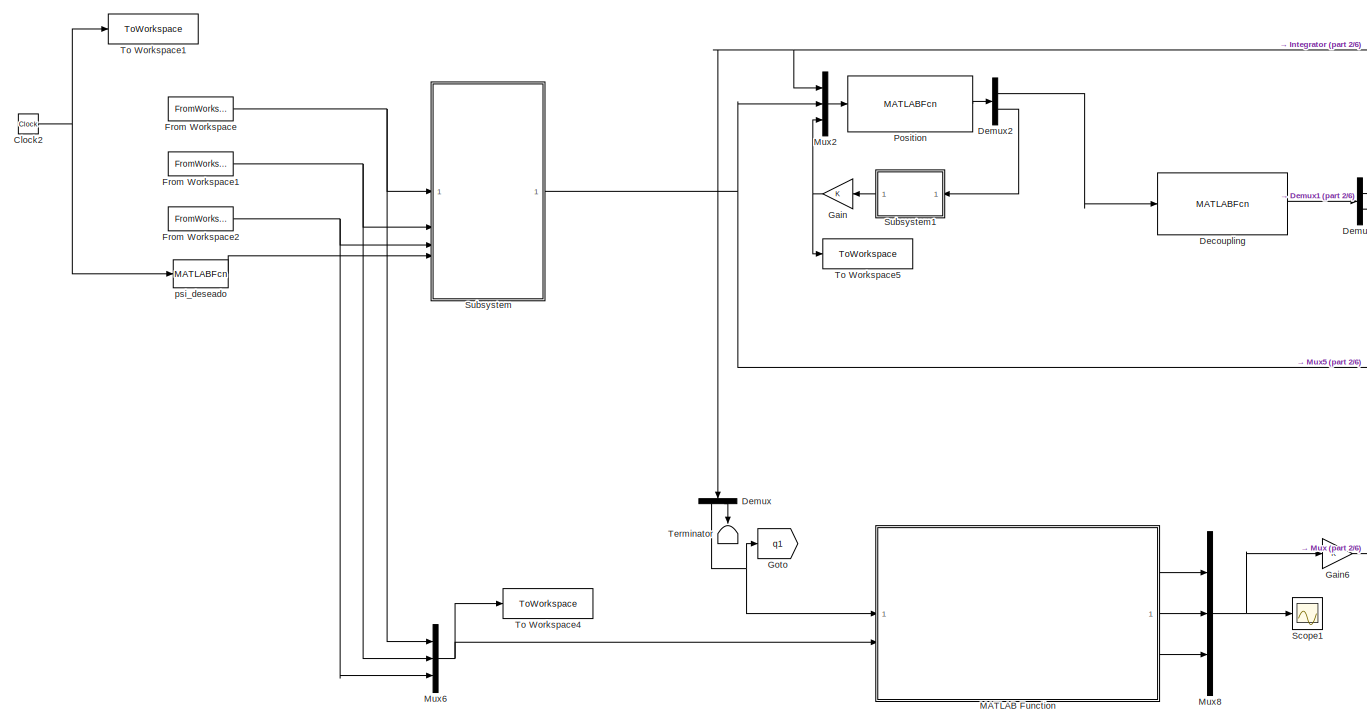
[diagram: root canvas - part 1/6, top left region]
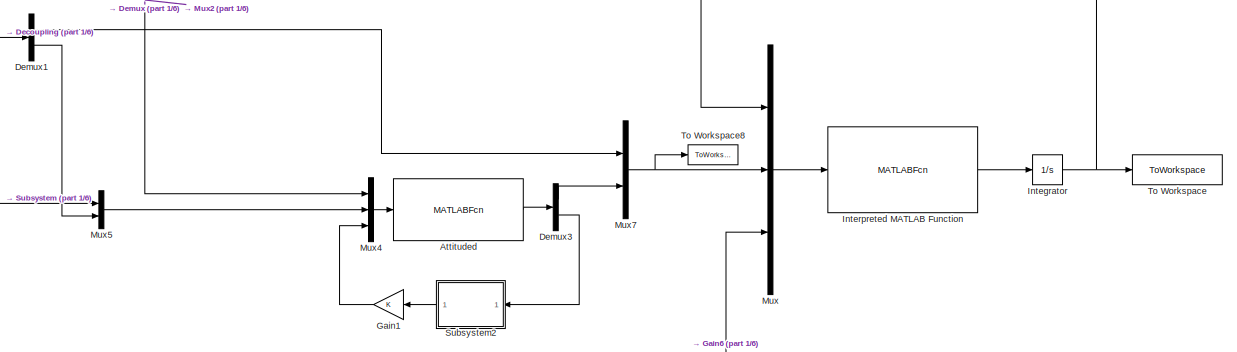
[diagram: root canvas - part 2/6, top right region]
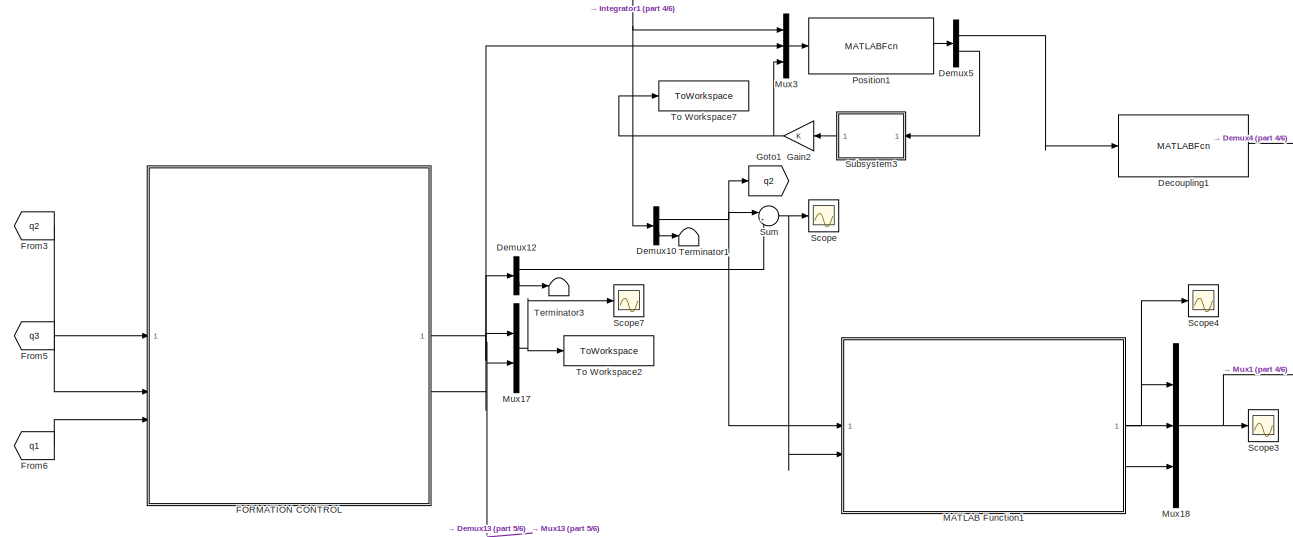
[diagram: root canvas - part 3/6, middle left region]
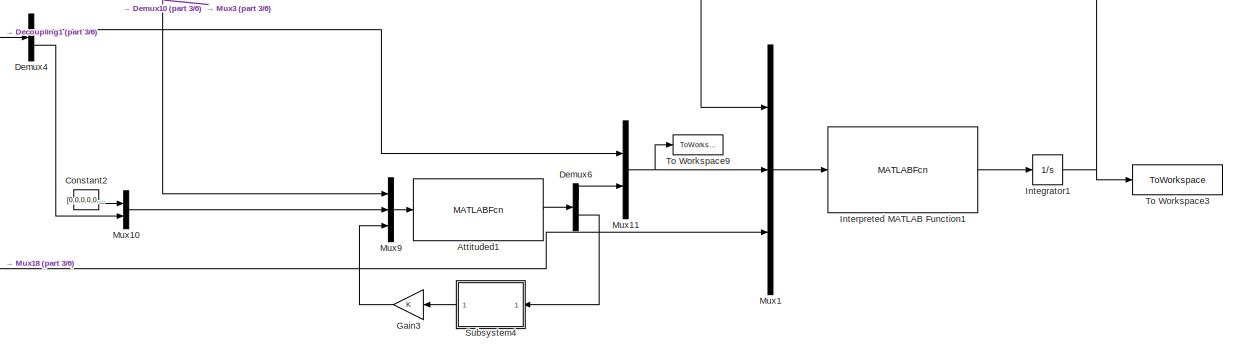
[diagram: root canvas - part 4/6, middle right region]
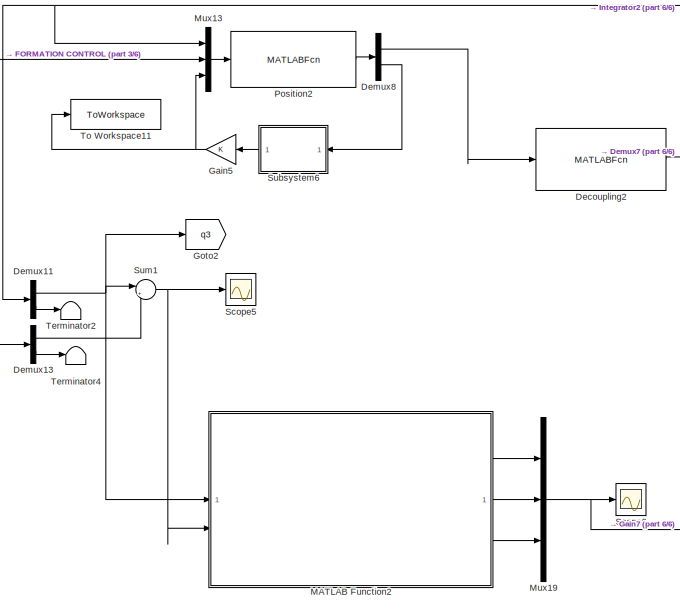
[diagram: root canvas - part 5/6, bottom center region]
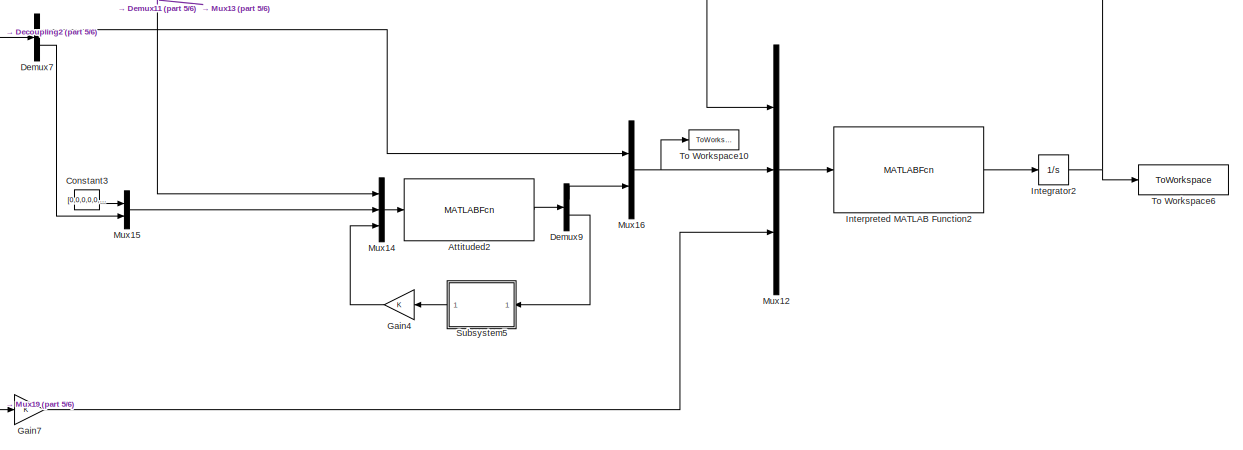
[diagram: root canvas - part 6/6, bottom right region]
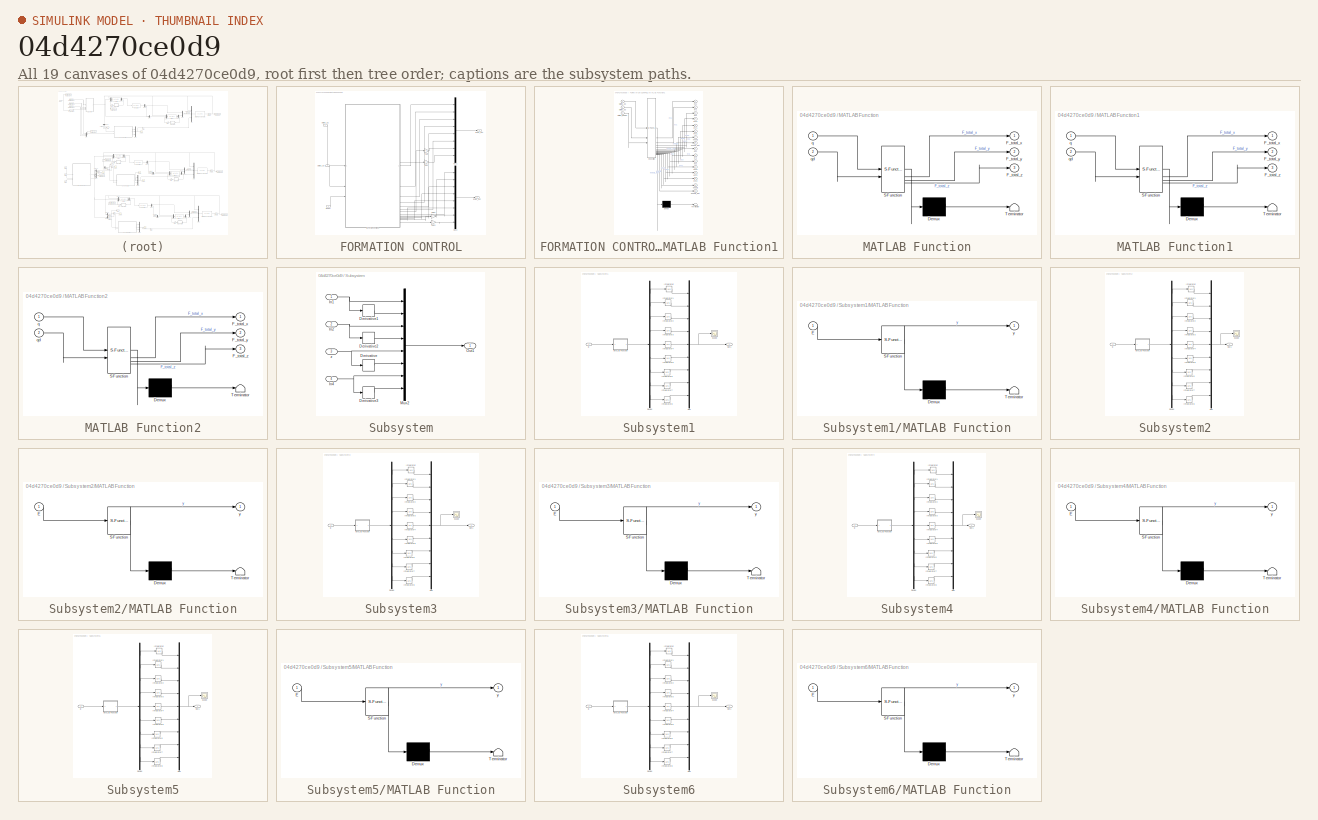
[diagram: thumbnail index - all 19 canvases of the model, root first then tree order]
MODEL slx_04d4270ce0d9
KIND model
CONFIG AbsTol = auto
CONFIG EnableMultiTasking = off
CONFIG FixedStep = auto
CONFIG MaxStep = auto
CONFIG MinStep = auto
CONFIG RelTol = 1e-3
CONFIG SampleTimeConstraint = Unconstrained
CONFIG SolverName = VariableStepAuto
CONFIG StartTime = 0.0
CONFIG StopTime = 100
BLOCK [MATLABFcn] Attituded
  MATLABFcn = control_attituded_FO(u(1),u(2),u(3),u(4),u(5),u(6),u(7),u(8),u(9),u(10),u(11),u(12),u(13),u(14),u(15),u(16),u(17),u(18),u(19),u(20),u(21),u(22),u(23),u(24),u(25),u(26),u(27),u(28),u(29),u(30),u(31))
  OutputDimensions = 9
BLOCK [MATLABFcn] Attituded1
  MATLABFcn = control_attituded_FO2(u(1),u(2),u(3),u(4),u(5),u(6),u(7),u(8),u(9),u(10),u(11),u(12),u(13),u(14),u(15),u(16),u(17),u(18),u(19),u(20),u(21),u(22),u(23),u(24),u(25),u(26),u(27),u(28),u(29),u(30),u(31))
  OutputDimensions = 9
BLOCK [MATLABFcn] Attituded2
  MATLABFcn = control_attituded_FO3(u(1),u(2),u(3),u(4),u(5),u(6),u(7),u(8),u(9),u(10),u(11),u(12),u(13),u(14),u(15),u(16),u(17),u(18),u(19),u(20),u(21),u(22),u(23),u(24),u(25),u(26),u(27),u(28),u(29),u(30),u(31))
  OutputDimensions = 9
BLOCK [Clock] Clock2
BLOCK [Constant] Constant2
  Value = [0,0,0,0,0,0,0,0]
BLOCK [Constant] Constant3
  Value = [0,0,0,0,0,0,0,0]
BLOCK [MATLABFcn] Decoupling
  MATLABFcn = Decoupling(u(1),u(2),u(3),u(4))
  OutputDimensions = 3
BLOCK [MATLABFcn] Decoupling1
  MATLABFcn = Decoupling(u(1),u(2),u(3),u(4))
  OutputDimensions = 3
BLOCK [MATLABFcn] Decoupling2
  MATLABFcn = Decoupling(u(1),u(2),u(3),u(4))
  OutputDimensions = 3
BLOCK [Demux] Demux
  NameLocation = left
  Outputs = [6 6]
BLOCK [Demux] Demux1
  Outputs = [1 2]
BLOCK [Demux] Demux10
  Outputs = [6 6]
BLOCK [Demux] Demux11
  Outputs = [6 6]
BLOCK [Demux] Demux12
  Outputs = [6 2]
BLOCK [Demux] Demux13
  Outputs = [6 2]
BLOCK [Demux] Demux2
  Outputs = [4 6]
BLOCK [Demux] Demux3
  Outputs = [3 6]
BLOCK [Demux] Demux4
  Outputs = [1 2]
BLOCK [Demux] Demux5
  Outputs = [4 6]
BLOCK [Demux] Demux6
  Outputs = [3 6]
BLOCK [Demux] Demux7
  Outputs = [1 2]
BLOCK [Demux] Demux8
  Outputs = [4 6]
BLOCK [Demux] Demux9
  Outputs = [3 6]
BLOCK [SubSystem] FORMATION CONTROL
BLOCK [Outport] FORMATION CONTROL/E1,E1_dot
BLOCK [Outport] FORMATION CONTROL/E2,E2_dot
  Port = 2
BLOCK [Gain] FORMATION CONTROL/Gain
  Gain = 0
BLOCK [Gain] FORMATION CONTROL/Gain1
  Gain = 0
BLOCK [Gain] FORMATION CONTROL/Gain2
  Gain = 0
BLOCK [Gain] FORMATION CONTROL/Gain3
  Gain = 0
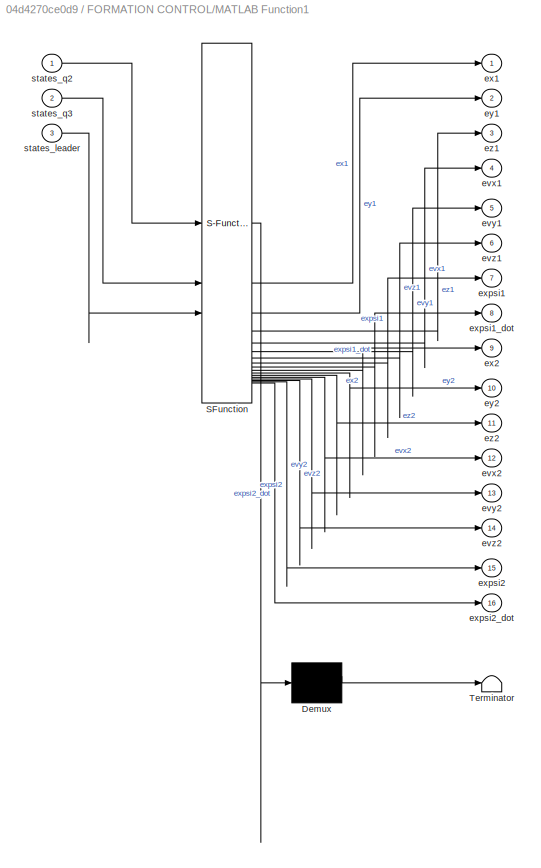
BLOCK [SubSystem] FORMATION CONTROL/MATLAB Function1
  ErrorFcn = Stateflow.Translate.translate
  PermitHierarchicalResolution = ExplicitOnly
  SFBlockType = MATLAB Function
  TreatAsAtomicUnit = on
BLOCK [Demux] FORMATION CONTROL/MATLAB Function1/ Demux 
  Outputs = 1
BLOCK [S-Function] FORMATION CONTROL/MATLAB Function1/ SFunction 
  EnableBusSupport = on
  FunctionName = sf_sfun
  PortCounts = [3 17]
  SFcnIsStateOwnerBlock = off
  SFunctionDeploymentMode = off
  Tag = Stateflow S-Function 13
BLOCK [Terminator] FORMATION CONTROL/MATLAB Function1/ Terminator 
BLOCK [Outport] FORMATION CONTROL/MATLAB Function1/evx1
  Port = 4
BLOCK [Outport] FORMATION CONTROL/MATLAB Function1/evx2
  Port = 12
BLOCK [Outport] FORMATION CONTROL/MATLAB Function1/evy1
  Port = 5
BLOCK [Outport] FORMATION CONTROL/MATLAB Function1/evy2
  Port = 13
BLOCK [Outport] FORMATION CONTROL/MATLAB Function1/evz1
  Port = 6
BLOCK [Outport] FORMATION CONTROL/MATLAB Function1/evz2
  Port = 14
BLOCK [Outport] FORMATION CONTROL/MATLAB Function1/ex1
  VectorParamsAs1DForOutWhenUnconnected = off
BLOCK [Outport] FORMATION CONTROL/MATLAB Function1/ex2
  Port = 9
BLOCK [Outport] FORMATION CONTROL/MATLAB Function1/expsi1
  Port = 7
BLOCK [Outport] FORMATION CONTROL/MATLAB Function1/expsi1_dot
  Port = 8
BLOCK [Outport] FORMATION CONTROL/MATLAB Function1/expsi2
  Port = 15
BLOCK [Outport] FORMATION CONTROL/MATLAB Function1/expsi2_dot
  Port = 16
BLOCK [Outport] FORMATION CONTROL/MATLAB Function1/ey1
  Port = 2
BLOCK [Outport] FORMATION CONTROL/MATLAB Function1/ey2
  Port = 10
BLOCK [Outport] FORMATION CONTROL/MATLAB Function1/ez1
  Port = 3
BLOCK [Outport] FORMATION CONTROL/MATLAB Function1/ez2
  Port = 11
BLOCK [Inport] FORMATION CONTROL/MATLAB Function1/states_leader
  Port = 3
BLOCK [Inport] FORMATION CONTROL/MATLAB Function1/states_q2
BLOCK [Inport] FORMATION CONTROL/MATLAB Function1/states_q3
  Port = 2
BLOCK [Mux] FORMATION CONTROL/Mux1
  DisplayOption = bar
  Inputs = 8
BLOCK [Mux] FORMATION CONTROL/Mux2
  DisplayOption = bar
  Inputs = 8
BLOCK [Inport] FORMATION CONTROL/leader
  Port = 3
BLOCK [Inport] FORMATION CONTROL/states_q2
BLOCK [Inport] FORMATION CONTROL/states_q3
  Port = 2
BLOCK [FromWorkspace] From Workspace
  OutDataTypeStr = double
  VariableName = xd
BLOCK [FromWorkspace] From Workspace1
  OutDataTypeStr = double
  VariableName = yd
BLOCK [FromWorkspace] From Workspace2
  OutDataTypeStr = double
  VariableName = zd
BLOCK [From] From3
  GotoTag = q2
BLOCK [From] From5
  GotoTag = q3
BLOCK [From] From6
  GotoTag = q1
BLOCK [Gain] Gain
  NameLocation = top
BLOCK [Gain] Gain1
  NameLocation = top
BLOCK [Gain] Gain2
  NameLocation = top
BLOCK [Gain] Gain3
  NameLocation = top
BLOCK [Gain] Gain4
  NameLocation = top
BLOCK [Gain] Gain5
  NameLocation = top
BLOCK [Gain] Gain6
BLOCK [Gain] Gain7
BLOCK [Goto] Goto
  GotoTag = q1
BLOCK [Goto] Goto1
  GotoTag = q2
BLOCK [Goto] Goto2
  GotoTag = q3
BLOCK [Integrator] Integrator
  InitialCondition = [0.5 0.5 0.01 0.01 0.01 0.01 0.01 0.01 0.05 0.01 0.01 0.01]
BLOCK [Integrator] Integrator1
  InitialCondition = [-1 -2 0.01 0.01 0.01 0.01 0.01 0.01 0.05 0.01 0.01 0.01]
BLOCK [Integrator] Integrator2
  InitialCondition = [-1 2 0.01 0.01 0.01 0.01 0.01 0.01 0.05 0.01 0.01 0.01]
BLOCK [MATLABFcn] Interpreted MATLAB Function
  MATLABFcn = Dynamic_UAV(u(1),u(2),u(3),u(4),u(5),u(6),u(7),u(8),u(9),u(10),u(11),u(12),u(13),u(14),u(15),u(16),u(17),u(18),u(19))
  OutputDimensions = 12
BLOCK [MATLABFcn] Interpreted MATLAB Function1
  MATLABFcn = Dynamic_UAV1(u(1),u(2),u(3),u(4),u(5),u(6),u(7),u(8),u(9),u(10),u(11),u(12),u(13),u(14),u(15),u(16),u(17),u(18),u(19))
  OutputDimensions = 12
BLOCK [MATLABFcn] Interpreted MATLAB Function2
  MATLABFcn = Dynamic_UAV2(u(1),u(2),u(3),u(4),u(5),u(6),u(7),u(8),u(9),u(10),u(11),u(12),u(13),u(14),u(15),u(16),u(17),u(18),u(19))
  OutputDimensions = 12
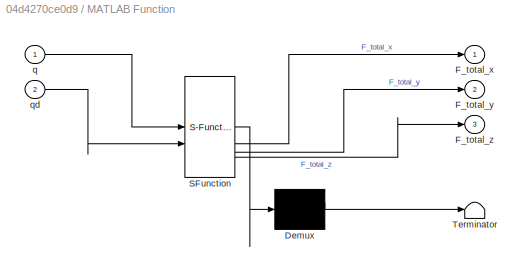
BLOCK [SubSystem] MATLAB Function
  ErrorFcn = Stateflow.Translate.translate
  PermitHierarchicalResolution = ExplicitOnly
  SFBlockType = MATLAB Function
  TreatAsAtomicUnit = on
BLOCK [Demux] MATLAB Function/ Demux 
  Outputs = 1
BLOCK [S-Function] MATLAB Function/ SFunction 
  EnableBusSupport = on
  FunctionName = sf_sfun
  PortCounts = [2 4]
  SFcnIsStateOwnerBlock = off
  SFunctionDeploymentMode = off
  Tag = Stateflow S-Function 2
BLOCK [Terminator] MATLAB Function/ Terminator 
BLOCK [Outport] MATLAB Function/F_total_x
BLOCK [Outport] MATLAB Function/F_total_y
  Port = 2
BLOCK [Outport] MATLAB Function/F_total_z
  Port = 3
BLOCK [Inport] MATLAB Function/q
BLOCK [Inport] MATLAB Function/qd
  Port = 2
BLOCK [SubSystem] MATLAB Function1
  ErrorFcn = Stateflow.Translate.translate
  PermitHierarchicalResolution = ExplicitOnly
  SFBlockType = MATLAB Function
  TreatAsAtomicUnit = on
BLOCK [Demux] MATLAB Function1/ Demux 
  Outputs = 1
BLOCK [S-Function] MATLAB Function1/ SFunction 
  EnableBusSupport = on
  FunctionName = sf_sfun
  PortCounts = [2 4]
  SFcnIsStateOwnerBlock = off
  SFunctionDeploymentMode = off
  Tag = Stateflow S-Function 1
BLOCK [Terminator] MATLAB Function1/ Terminator 
BLOCK [Outport] MATLAB Function1/F_total_x
BLOCK [Outport] MATLAB Function1/F_total_y
  Port = 2
BLOCK [Outport] MATLAB Function1/F_total_z
  Port = 3
BLOCK [Inport] MATLAB Function1/q
BLOCK [Inport] MATLAB Function1/qd
  Port = 2
BLOCK [SubSystem] MATLAB Function2
  ErrorFcn = Stateflow.Translate.translate
  PermitHierarchicalResolution = ExplicitOnly
  SFBlockType = MATLAB Function
  TreatAsAtomicUnit = on
BLOCK [Demux] MATLAB Function2/ Demux 
  Outputs = 1
BLOCK [S-Function] MATLAB Function2/ SFunction 
  EnableBusSupport = on
  FunctionName = sf_sfun
  PortCounts = [2 4]
  SFcnIsStateOwnerBlock = off
  SFunctionDeploymentMode = off
  Tag = Stateflow S-Function 9
BLOCK [Terminator] MATLAB Function2/ Terminator 
BLOCK [Outport] MATLAB Function2/F_total_x
BLOCK [Outport] MATLAB Function2/F_total_y
  Port = 2
BLOCK [Outport] MATLAB Function2/F_total_z
  Port = 3
BLOCK [Inport] MATLAB Function2/q
BLOCK [Inport] MATLAB Function2/qd
  Port = 2
BLOCK [Mux] Mux
  DisplayOption = bar
  Inputs = [12 4 3]
BLOCK [Mux] Mux1
  DisplayOption = bar
  Inputs = [12 4 3]
BLOCK [Mux] Mux10
  DisplayOption = bar
  Inputs = [8 2]
BLOCK [Mux] Mux11
  DisplayOption = bar
  Inputs = [1 3]
BLOCK [Mux] Mux12
  DisplayOption = bar
  Inputs = [12 4 3]
BLOCK [Mux] Mux13
  DisplayOption = bar
  Inputs = [12 8 9]
BLOCK [Mux] Mux14
  DisplayOption = bar
  Inputs = [12 10 9]
BLOCK [Mux] Mux15
  DisplayOption = bar
  Inputs = [8 2]
BLOCK [Mux] Mux16
  DisplayOption = bar
  Inputs = [1 3]
BLOCK [Mux] Mux17
  DisplayOption = bar
  Inputs = 2
BLOCK [Mux] Mux18
  DisplayOption = bar
  Inputs = 3
BLOCK [Mux] Mux19
  DisplayOption = bar
  Inputs = 3
BLOCK [Mux] Mux2
  DisplayOption = bar
  Inputs = [12 8 9]
BLOCK [Mux] Mux3
  DisplayOption = bar
  Inputs = [12 8 9]
BLOCK [Mux] Mux4
  DisplayOption = bar
  Inputs = [12 10 9]
BLOCK [Mux] Mux5
  DisplayOption = bar
  Inputs = [8 2]
BLOCK [Mux] Mux6
  DisplayOption = bar
  Inputs = 3
BLOCK [Mux] Mux7
  DisplayOption = bar
  Inputs = [1 3]
BLOCK [Mux] Mux8
  DisplayOption = bar
  Inputs = 3
BLOCK [Mux] Mux9
  DisplayOption = bar
  Inputs = [12 10 9]
BLOCK [MATLABFcn] Position
  MATLABFcn = control_position_FO(u(1),u(2),u(3),u(4),u(5),u(6),u(7),u(8),u(9),u(10),u(11),u(12),u(13),u(14),u(15),u(16),u(17),u(18),u(19),u(20),u(21),u(22),u(23),u(24),u(25),u(26),u(27),u(28),u(29))
  OutputDimensions = 10
BLOCK [MATLABFcn] Position1
  MATLABFcn = control_position_FO2(u(1),u(2),u(3),u(4),u(5),u(6),u(7),u(8),u(9),u(10),u(11),u(12),u(13),u(14),u(15),u(16),u(17),u(18),u(19),u(20),u(21),u(22),u(23),u(24),u(25),u(26),u(27),u(28),u(29))
  OutputDimensions = 10
BLOCK [MATLABFcn] Position2
  MATLABFcn = control_position_FO3(u(1),u(2),u(3),u(4),u(5),u(6),u(7),u(8),u(9),u(10),u(11),u(12),u(13),u(14),u(15),u(16),u(17),u(18),u(19),u(20),u(21),u(22),u(23),u(24),u(25),u(26),u(27),u(28),u(29))
  OutputDimensions = 10
BLOCK [Scope] Scope
  Floating = off
  NumInputPorts = 1
  ScopeSpecificationString = Simulink.scopes.TimeScopeBlockCfg('CurrentConfiguration', extmgr.ConfigurationSet(extmgr.Configuration('Core','General UI',true),extmgr.Configuration('Core','Source UI',true),extmgr.Configuration('Sources','WiredSimulink',true,'DataLoggingVariableName','ScopeData2'),extmgr.Configuration('Visuals','Time Domain',true,'SerializedDisplays',{struct('MinYLimReal','-5.17924','MaxYLimReal','16.23108','YLa...<+1635ch>
BLOCK [Scope] Scope1
  Floating = off
  NumInputPorts = 1
  ScopeSpecificationString = Simulink.scopes.TimeScopeBlockCfg('CurrentConfiguration', extmgr.ConfigurationSet(extmgr.Configuration('Core','General UI',true),extmgr.Configuration('Core','Source UI',true),extmgr.Configuration('Sources','WiredSimulink',true,'DataLoggingVariableName','ScopeData1'),extmgr.Configuration('Visuals','Time Domain',true,'SerializedDisplays',{struct('MinYLimReal','-18.03697','MaxYLimReal','17.66011','YL...<+1648ch>
BLOCK [Scope] Scope3
  Floating = off
  NumInputPorts = 1
  ScopeSpecificationString = Simulink.scopes.TimeScopeBlockCfg('CurrentConfiguration', extmgr.ConfigurationSet(extmgr.Configuration('Core','General UI',true),extmgr.Configuration('Core','Source UI',true),extmgr.Configuration('Sources','WiredSimulink',true,'DataLoggingVariableName','ScopeData3'),extmgr.Configuration('Visuals','Time Domain',true,'SerializedDisplays',{struct('MinYLimReal','-12.0425','MaxYLimReal','13.33145','YLa...<+1649ch>
BLOCK [Scope] Scope4
  Floating = off
  NumInputPorts = 1
  ScopeSpecificationString = Simulink.scopes.TimeScopeBlockCfg('CurrentConfiguration', extmgr.ConfigurationSet(extmgr.Configuration('Core','General UI',true),extmgr.Configuration('Core','Source UI',true),extmgr.Configuration('Sources','WiredSimulink',true,'DataLoggingVariableName','ScopeData4'),extmgr.Configuration('Visuals','Time Domain',true,'SerializedDisplays',{struct('MinYLimReal','-5.79143','MaxYLimReal','35.07153','YLa...<+1590ch>
BLOCK [Scope] Scope5
  Floating = off
  NumInputPorts = 1
  ScopeSpecificationString = Simulink.scopes.TimeScopeBlockCfg('CurrentConfiguration', extmgr.ConfigurationSet(extmgr.Configuration('Core','General UI',true),extmgr.Configuration('Core','Source UI',true),extmgr.Configuration('Sources','WiredSimulink',true,'DataLoggingVariableName','ScopeData5'),extmgr.Configuration('Visuals','Time Domain',true,'SerializedDisplays',{struct('MinYLimReal','-4.92309','MaxYLimReal','16.17677','YLa...<+1635ch>
BLOCK [Scope] Scope6
  Floating = off
  NumInputPorts = 1
  ScopeSpecificationString = Simulink.scopes.TimeScopeBlockCfg('CurrentConfiguration', extmgr.ConfigurationSet(extmgr.Configuration('Core','General UI',true),extmgr.Configuration('Core','Source UI',true),extmgr.Configuration('Sources','WiredSimulink',true,'DataLoggingVariableName','ScopeData6'),extmgr.Configuration('Visuals','Time Domain',true,'SerializedDisplays',{struct('MinYLimReal','-6.31248','MaxYLimReal','17.29038','YLa...<+1649ch>
BLOCK [Scope] Scope7
  Floating = off
  NumInputPorts = 1
  ScopeSpecificationString = Simulink.scopes.TimeScopeBlockCfg('CurrentConfiguration', extmgr.ConfigurationSet(extmgr.Configuration('Core','General UI',true),extmgr.Configuration('Core','Source UI',true),extmgr.Configuration('Sources','WiredSimulink',true,'DataLoggingVariableName','ScopeData3'),extmgr.Configuration('Visuals','Time Domain',true,'SerializedDisplays',{struct('MinYLimReal','-2.92111','MaxYLimReal','2.06706','YLab...<+2235ch>
BLOCK [SubSystem] Subsystem
BLOCK [Derivative] Subsystem/Derivative
BLOCK [Derivative] Subsystem/Derivative1
BLOCK [Derivative] Subsystem/Derivative2
BLOCK [Derivative] Subsystem/Derivative3
BLOCK [Inport] Subsystem/In1
BLOCK [Inport] Subsystem/In2
  Port = 2
BLOCK [Inport] Subsystem/In4
  Port = 4
BLOCK [Mux] Subsystem/Mux2
  DisplayOption = bar
  Inputs = 8
BLOCK [Outport] Subsystem/Out1
BLOCK [Inport] Subsystem/z
  Port = 3
BLOCK [SubSystem] Subsystem1
  NameLocation = top
BLOCK [Demux] Subsystem1/Demux
  Outputs = 9
BLOCK [Inport] Subsystem1/E
BLOCK [Integrator] Subsystem1/Integrator
  InitialCondition = 0.01
BLOCK [Integrator] Subsystem1/Integrator1
  InitialCondition = 0.01
BLOCK [Integrator] Subsystem1/Integrator2
  InitialCondition = 0.01
BLOCK [Integrator] Subsystem1/Integrator3
  InitialCondition = 0.01
BLOCK [Integrator] Subsystem1/Integrator4
  InitialCondition = 0.01
BLOCK [Integrator] Subsystem1/Integrator5
  InitialCondition = 0.01
BLOCK [Integrator] Subsystem1/Integrator6
  InitialCondition = 0.01
BLOCK [Integrator] Subsystem1/Integrator7
  InitialCondition = 0.01
BLOCK [Integrator] Subsystem1/Integrator8
  InitialCondition = 0.01
BLOCK [SubSystem] Subsystem1/MATLAB Function
  ErrorFcn = Stateflow.Translate.translate
  PermitHierarchicalResolution = ExplicitOnly
  SFBlockType = MATLAB Function
  TreatAsAtomicUnit = on
BLOCK [Demux] Subsystem1/MATLAB Function/ Demux 
  Outputs = 1
BLOCK [S-Function] Subsystem1/MATLAB Function/ SFunction 
  EnableBusSupport = on
  FunctionName = sf_sfun
  PortCounts = [1 2]
  SFcnIsStateOwnerBlock = off
  SFunctionDeploymentMode = off
  Tag = Stateflow S-Function 3
BLOCK [Terminator] Subsystem1/MATLAB Function/ Terminator 
BLOCK [Inport] Subsystem1/MATLAB Function/E
BLOCK [Outport] Subsystem1/MATLAB Function/y
BLOCK [Mux] Subsystem1/Mux
  DisplayOption = bar
  Inputs = 9
BLOCK [Outport] Subsystem1/Out1
BLOCK [Scope] Subsystem1/Scope
  Floating = off
  NumInputPorts = 1
  ScopeSpecificationString = Simulink.scopes.TimeScopeBlockCfg('CurrentConfiguration', extmgr.ConfigurationSet(extmgr.Configuration('Core','General UI',true),extmgr.Configuration('Core','Source UI',true),extmgr.Configuration('Sources','WiredSimulink',true,'DataLoggingVariableName','ScopeData1'),extmgr.Configuration('Visuals','Time Domain',true,'SerializedDisplays',{struct('MinYLimReal','-0.44155','MaxYLimReal','4.05649','YLab...<+1806ch>
BLOCK [SubSystem] Subsystem2
  NameLocation = top
BLOCK [Demux] Subsystem2/Demux
  Outputs = 9
BLOCK [Inport] Subsystem2/E
BLOCK [Integrator] Subsystem2/Integrator
  InitialCondition = 0.01
BLOCK [Integrator] Subsystem2/Integrator1
  InitialCondition = 0.01
BLOCK [Integrator] Subsystem2/Integrator2
  InitialCondition = 0.01
BLOCK [Integrator] Subsystem2/Integrator3
  InitialCondition = 0.01
BLOCK [Integrator] Subsystem2/Integrator4
  InitialCondition = 0.01
BLOCK [Integrator] Subsystem2/Integrator5
  InitialCondition = 0.01
BLOCK [Integrator] Subsystem2/Integrator6
  InitialCondition = 0.01
BLOCK [Integrator] Subsystem2/Integrator7
  InitialCondition = 0.01
BLOCK [Integrator] Subsystem2/Integrator8
  InitialCondition = 0.01
BLOCK [SubSystem] Subsystem2/MATLAB Function
  ErrorFcn = Stateflow.Translate.translate
  PermitHierarchicalResolution = ExplicitOnly
  SFBlockType = MATLAB Function
  TreatAsAtomicUnit = on
BLOCK [Demux] Subsystem2/MATLAB Function/ Demux 
  Outputs = 1
BLOCK [S-Function] Subsystem2/MATLAB Function/ SFunction 
  EnableBusSupport = on
  FunctionName = sf_sfun
  PortCounts = [1 2]
  SFcnIsStateOwnerBlock = off
  SFunctionDeploymentMode = off
  Tag = Stateflow S-Function 4
BLOCK [Terminator] Subsystem2/MATLAB Function/ Terminator 
BLOCK [Inport] Subsystem2/MATLAB Function/E
BLOCK [Outport] Subsystem2/MATLAB Function/y
BLOCK [Mux] Subsystem2/Mux
  DisplayOption = bar
  Inputs = 9
BLOCK [Outport] Subsystem2/Out1
BLOCK [Scope] Subsystem2/Scope
  Floating = off
  NumInputPorts = 1
  ScopeSpecificationString = Simulink.scopes.TimeScopeBlockCfg('CurrentConfiguration', extmgr.ConfigurationSet(extmgr.Configuration('Core','General UI',true),extmgr.Configuration('Core','Source UI',true),extmgr.Configuration('Sources','WiredSimulink',true,'DataLoggingVariableName','ScopeData2'),extmgr.Configuration('Visuals','Time Domain',true,'SerializedDisplays',{struct('MinYLimReal','-7.51034','MaxYLimReal','67.69298','YLa...<+1810ch>
BLOCK [SubSystem] Subsystem3
  NameLocation = top
BLOCK [Demux] Subsystem3/Demux
  Outputs = 9
BLOCK [Inport] Subsystem3/E
BLOCK [Integrator] Subsystem3/Integrator
  InitialCondition = 0.01
BLOCK [Integrator] Subsystem3/Integrator1
  InitialCondition = 0.01
BLOCK [Integrator] Subsystem3/Integrator2
  InitialCondition = 0.01
BLOCK [Integrator] Subsystem3/Integrator3
  InitialCondition = 0.01
BLOCK [Integrator] Subsystem3/Integrator4
  InitialCondition = 0.01
BLOCK [Integrator] Subsystem3/Integrator5
  InitialCondition = 0.01
BLOCK [Integrator] Subsystem3/Integrator6
  InitialCondition = 0.01
BLOCK [Integrator] Subsystem3/Integrator7
  InitialCondition = 0.01
BLOCK [Integrator] Subsystem3/Integrator8
  InitialCondition = 0.01
BLOCK [SubSystem] Subsystem3/MATLAB Function
  ErrorFcn = Stateflow.Translate.translate
  PermitHierarchicalResolution = ExplicitOnly
  SFBlockType = MATLAB Function
  TreatAsAtomicUnit = on
BLOCK [Demux] Subsystem3/MATLAB Function/ Demux 
  Outputs = 1
BLOCK [S-Function] Subsystem3/MATLAB Function/ SFunction 
  EnableBusSupport = on
  FunctionName = sf_sfun
  PortCounts = [1 2]
  SFcnIsStateOwnerBlock = off
  SFunctionDeploymentMode = off
  Tag = Stateflow S-Function 5
BLOCK [Terminator] Subsystem3/MATLAB Function/ Terminator 
BLOCK [Inport] Subsystem3/MATLAB Function/E
BLOCK [Outport] Subsystem3/MATLAB Function/y
BLOCK [Mux] Subsystem3/Mux
  DisplayOption = bar
  Inputs = 9
BLOCK [Outport] Subsystem3/Out1
BLOCK [Scope] Subsystem3/Scope
  Floating = off
  NumInputPorts = 1
  ScopeSpecificationString = Simulink.scopes.TimeScopeBlockCfg('CurrentConfiguration', extmgr.ConfigurationSet(extmgr.Configuration('Core','General UI',true),extmgr.Configuration('Core','Source UI',true),extmgr.Configuration('Sources','WiredSimulink',true,'DataLoggingVariableName','ScopeData1'),extmgr.Configuration('Visuals','Time Domain',true,'SerializedDisplays',{struct('MinYLimReal','-0.44158','MaxYLimReal','4.05675','YLab...<+1806ch>
BLOCK [SubSystem] Subsystem4
  NameLocation = top
BLOCK [Demux] Subsystem4/Demux
  Outputs = 9
BLOCK [Inport] Subsystem4/E
BLOCK [Integrator] Subsystem4/Integrator
  InitialCondition = 0.01
BLOCK [Integrator] Subsystem4/Integrator1
  InitialCondition = 0.01
BLOCK [Integrator] Subsystem4/Integrator2
  InitialCondition = 0.01
BLOCK [Integrator] Subsystem4/Integrator3
  InitialCondition = 0.01
BLOCK [Integrator] Subsystem4/Integrator4
  InitialCondition = 0.01
BLOCK [Integrator] Subsystem4/Integrator5
  InitialCondition = 0.01
BLOCK [Integrator] Subsystem4/Integrator6
  InitialCondition = 0.01
BLOCK [Integrator] Subsystem4/Integrator7
  InitialCondition = 0.01
BLOCK [Integrator] Subsystem4/Integrator8
  InitialCondition = 0.01
BLOCK [SubSystem] Subsystem4/MATLAB Function
  ErrorFcn = Stateflow.Translate.translate
  PermitHierarchicalResolution = ExplicitOnly
  SFBlockType = MATLAB Function
  TreatAsAtomicUnit = on
BLOCK [Demux] Subsystem4/MATLAB Function/ Demux 
  Outputs = 1
BLOCK [S-Function] Subsystem4/MATLAB Function/ SFunction 
  EnableBusSupport = on
  FunctionName = sf_sfun
  PortCounts = [1 2]
  SFcnIsStateOwnerBlock = off
  SFunctionDeploymentMode = off
  Tag = Stateflow S-Function 6
BLOCK [Terminator] Subsystem4/MATLAB Function/ Terminator 
BLOCK [Inport] Subsystem4/MATLAB Function/E
BLOCK [Outport] Subsystem4/MATLAB Function/y
BLOCK [Mux] Subsystem4/Mux
  DisplayOption = bar
  Inputs = 9
BLOCK [Outport] Subsystem4/Out1
BLOCK [Scope] Subsystem4/Scope
  Floating = off
  NumInputPorts = 1
  ScopeSpecificationString = Simulink.scopes.TimeScopeBlockCfg('CurrentConfiguration', extmgr.ConfigurationSet(extmgr.Configuration('Core','General UI',true),extmgr.Configuration('Core','Source UI',true),extmgr.Configuration('Sources','WiredSimulink',true,'DataLoggingVariableName','ScopeData2'),extmgr.Configuration('Visuals','Time Domain',true,'SerializedDisplays',{struct('MinYLimReal','-7.51422','MaxYLimReal','67.72789','YLa...<+1810ch>
BLOCK [SubSystem] Subsystem5
  NameLocation = top
BLOCK [Demux] Subsystem5/Demux
  Outputs = 9
BLOCK [Inport] Subsystem5/E
BLOCK [Integrator] Subsystem5/Integrator
  InitialCondition = 0.01
BLOCK [Integrator] Subsystem5/Integrator1
  InitialCondition = 0.01
BLOCK [Integrator] Subsystem5/Integrator2
  InitialCondition = 0.01
BLOCK [Integrator] Subsystem5/Integrator3
  InitialCondition = 0.01
BLOCK [Integrator] Subsystem5/Integrator4
  InitialCondition = 0.01
BLOCK [Integrator] Subsystem5/Integrator5
  InitialCondition = 0.01
BLOCK [Integrator] Subsystem5/Integrator6
  InitialCondition = 0.01
BLOCK [Integrator] Subsystem5/Integrator7
  InitialCondition = 0.01
BLOCK [Integrator] Subsystem5/Integrator8
  InitialCondition = 0.01
BLOCK [SubSystem] Subsystem5/MATLAB Function
  ErrorFcn = Stateflow.Translate.translate
  PermitHierarchicalResolution = ExplicitOnly
  SFBlockType = MATLAB Function
  TreatAsAtomicUnit = on
BLOCK [Demux] Subsystem5/MATLAB Function/ Demux 
  Outputs = 1
BLOCK [S-Function] Subsystem5/MATLAB Function/ SFunction 
  EnableBusSupport = on
  FunctionName = sf_sfun
  PortCounts = [1 2]
  SFcnIsStateOwnerBlock = off
  SFunctionDeploymentMode = off
  Tag = Stateflow S-Function 7
BLOCK [Terminator] Subsystem5/MATLAB Function/ Terminator 
BLOCK [Inport] Subsystem5/MATLAB Function/E
BLOCK [Outport] Subsystem5/MATLAB Function/y
BLOCK [Mux] Subsystem5/Mux
  DisplayOption = bar
  Inputs = 9
BLOCK [Outport] Subsystem5/Out1
BLOCK [Scope] Subsystem5/Scope
  Floating = off
  NumInputPorts = 1
  ScopeSpecificationString = Simulink.scopes.TimeScopeBlockCfg('CurrentConfiguration', extmgr.ConfigurationSet(extmgr.Configuration('Core','General UI',true),extmgr.Configuration('Core','Source UI',true),extmgr.Configuration('Sources','WiredSimulink',true,'DataLoggingVariableName','ScopeData2'),extmgr.Configuration('Visuals','Time Domain',true,'SerializedDisplays',{struct('MinYLimReal','-7.51422','MaxYLimReal','67.72789','YLa...<+1810ch>
BLOCK [SubSystem] Subsystem6
  NameLocation = top
BLOCK [Demux] Subsystem6/Demux
  Outputs = 9
BLOCK [Inport] Subsystem6/E
BLOCK [Integrator] Subsystem6/Integrator
  InitialCondition = 0.01
BLOCK [Integrator] Subsystem6/Integrator1
  InitialCondition = 0.01
BLOCK [Integrator] Subsystem6/Integrator2
  InitialCondition = 0.01
BLOCK [Integrator] Subsystem6/Integrator3
  InitialCondition = 0.01
BLOCK [Integrator] Subsystem6/Integrator4
  InitialCondition = 0.01
BLOCK [Integrator] Subsystem6/Integrator5
  InitialCondition = 0.01
BLOCK [Integrator] Subsystem6/Integrator6
  InitialCondition = 0.01
BLOCK [Integrator] Subsystem6/Integrator7
  InitialCondition = 0.01
BLOCK [Integrator] Subsystem6/Integrator8
  InitialCondition = 0.01
BLOCK [SubSystem] Subsystem6/MATLAB Function
  ErrorFcn = Stateflow.Translate.translate
  PermitHierarchicalResolution = ExplicitOnly
  SFBlockType = MATLAB Function
  TreatAsAtomicUnit = on
BLOCK [Demux] Subsystem6/MATLAB Function/ Demux 
  Outputs = 1
BLOCK [S-Function] Subsystem6/MATLAB Function/ SFunction 
  EnableBusSupport = on
  FunctionName = sf_sfun
  PortCounts = [1 2]
  SFcnIsStateOwnerBlock = off
  SFunctionDeploymentMode = off
  Tag = Stateflow S-Function 8
BLOCK [Terminator] Subsystem6/MATLAB Function/ Terminator 
BLOCK [Inport] Subsystem6/MATLAB Function/E
BLOCK [Outport] Subsystem6/MATLAB Function/y
BLOCK [Mux] Subsystem6/Mux
  DisplayOption = bar
  Inputs = 9
BLOCK [Outport] Subsystem6/Out1
BLOCK [Scope] Subsystem6/Scope
  Floating = off
  NumInputPorts = 1
  ScopeSpecificationString = Simulink.scopes.TimeScopeBlockCfg('CurrentConfiguration', extmgr.ConfigurationSet(extmgr.Configuration('Core','General UI',true),extmgr.Configuration('Core','Source UI',true),extmgr.Configuration('Sources','WiredSimulink',true,'DataLoggingVariableName','ScopeData1'),extmgr.Configuration('Visuals','Time Domain',true,'SerializedDisplays',{struct('MinYLimReal','-0.44158','MaxYLimReal','4.05675','YLab...<+1806ch>
BLOCK [Sum] Sum
  Inputs = |+-
BLOCK [Sum] Sum1
  Inputs = |+-
BLOCK [Terminator] Terminator
  NameLocation = left
BLOCK [Terminator] Terminator1
BLOCK [Terminator] Terminator2
BLOCK [Terminator] Terminator3
BLOCK [Terminator] Terminator4
BLOCK [ToWorkspace] To Workspace
  FixptAsFi = on
  MaxDataPoints = inf
  SampleTime = -1
  VariableName = q
BLOCK [ToWorkspace] To Workspace1
  FixptAsFi = on
  MaxDataPoints = inf
  SampleTime = -1
  VariableName = t
BLOCK [ToWorkspace] To Workspace10
  FixptAsFi = on
  MaxDataPoints = inf
  SampleTime = -1
  VariableName = U2
BLOCK [ToWorkspace] To Workspace11
  FixptAsFi = on
  MaxDataPoints = inf
  SampleTime = -1
  VariableName = Adap3
BLOCK [ToWorkspace] To Workspace2
  FixptAsFi = on
  MaxDataPoints = inf
  SampleTime = -1
  VariableName = e
BLOCK [ToWorkspace] To Workspace3
  FixptAsFi = on
  MaxDataPoints = inf
  SampleTime = -1
  VariableName = q1
BLOCK [ToWorkspace] To Workspace4
  FixptAsFi = on
  MaxDataPoints = inf
  SampleTime = -1
  VariableName = ref
BLOCK [ToWorkspace] To Workspace5
  FixptAsFi = on
  MaxDataPoints = inf
  SampleTime = -1
  VariableName = Adap1
BLOCK [ToWorkspace] To Workspace6
  FixptAsFi = on
  MaxDataPoints = inf
  SampleTime = -1
  VariableName = q2
BLOCK [ToWorkspace] To Workspace7
  FixptAsFi = on
  MaxDataPoints = inf
  SampleTime = -1
  VariableName = Adap2
BLOCK [ToWorkspace] To Workspace8
  FixptAsFi = on
  MaxDataPoints = inf
  SampleTime = -1
  VariableName = U
BLOCK [ToWorkspace] To Workspace9
  FixptAsFi = on
  MaxDataPoints = inf
  SampleTime = -1
  VariableName = U1
BLOCK [MATLABFcn] psi_deseado
  MATLABFcn = 0*ones(1,length(u))*(pi/180)
LINE Attituded1:1 -> Demux6:1
LINE Attituded2:1 -> Demux9:1
LINE Attituded:1 -> Demux3:1
NET Clock2:1 -> To Workspace1:1, psi_deseado:1
LINE Constant2:1 -> Mux10:1
LINE Constant3:1 -> Mux15:1
LINE Decoupling1:1 -> Demux4:1
LINE Decoupling2:1 -> Demux7:1
LINE Decoupling:1 -> Demux1:1
NET Demux10:1 -> Goto1:1, MATLAB Function1:1, Sum:1
LINE Demux10:2 -> Terminator1:1
NET Demux11:1 -> Goto2:1, MATLAB Function2:1, Sum1:1
LINE Demux11:2 -> Terminator2:1
LINE Demux12:1 -> Sum:2
LINE Demux12:2 -> Terminator3:1
LINE Demux13:1 -> Sum1:2
LINE Demux13:2 -> Terminator4:1
LINE Demux1:1 -> Mux7:1
LINE Demux1:2 -> Mux5:2
LINE Demux2:1 -> Decoupling:1
LINE Demux2:2 -> Subsystem1:1
LINE Demux3:1 -> Mux7:2
LINE Demux3:2 -> Subsystem2:1
LINE Demux4:1 -> Mux11:1
LINE Demux4:2 -> Mux10:2
LINE Demux5:1 -> Decoupling1:1
LINE Demux5:2 -> Subsystem3:1
LINE Demux6:1 -> Mux11:2
LINE Demux6:2 -> Subsystem4:1
LINE Demux7:1 -> Mux16:1
LINE Demux7:2 -> Mux15:2
LINE Demux8:1 -> Decoupling2:1
LINE Demux8:2 -> Subsystem6:1
LINE Demux9:1 -> Mux16:2
LINE Demux9:2 -> Subsystem5:1
NET Demux:1 -> Goto:1, MATLAB Function:1
LINE Demux:2 -> Terminator:1
LINE FORMATION CONTROL/Gain1:1 -> FORMATION CONTROL/Mux1:8
LINE FORMATION CONTROL/Gain2:1 -> FORMATION CONTROL/Mux2:7
LINE FORMATION CONTROL/Gain3:1 -> FORMATION CONTROL/Mux2:8
LINE FORMATION CONTROL/Gain:1 -> FORMATION CONTROL/Mux1:7
LINE FORMATION CONTROL/MATLAB Function1:1 -> FORMATION CONTROL/Mux1:1
LINE FORMATION CONTROL/MATLAB Function1:10 -> FORMATION CONTROL/Mux2:2
LINE FORMATION CONTROL/MATLAB Function1:11 -> FORMATION CONTROL/Mux2:3
LINE FORMATION CONTROL/MATLAB Function1:12 -> FORMATION CONTROL/Mux2:4
LINE FORMATION CONTROL/MATLAB Function1:13 -> FORMATION CONTROL/Mux2:5
LINE FORMATION CONTROL/MATLAB Function1:14 -> FORMATION CONTROL/Mux2:6
LINE FORMATION CONTROL/MATLAB Function1:15 -> FORMATION CONTROL/Gain2:1
LINE FORMATION CONTROL/MATLAB Function1:16 -> FORMATION CONTROL/Gain3:1
LINE FORMATION CONTROL/MATLAB Function1:2 -> FORMATION CONTROL/Mux1:2
LINE FORMATION CONTROL/MATLAB Function1:3 -> FORMATION CONTROL/Mux1:3
LINE FORMATION CONTROL/MATLAB Function1:4 -> FORMATION CONTROL/Mux1:4
LINE FORMATION CONTROL/MATLAB Function1:5 -> FORMATION CONTROL/Mux1:5
LINE FORMATION CONTROL/MATLAB Function1:6 -> FORMATION CONTROL/Mux1:6
LINE FORMATION CONTROL/MATLAB Function1:7 -> FORMATION CONTROL/Gain:1
LINE FORMATION CONTROL/MATLAB Function1:8 -> FORMATION CONTROL/Gain1:1
LINE FORMATION CONTROL/MATLAB Function1:9 -> FORMATION CONTROL/Mux2:1
LINE FORMATION CONTROL/Mux1:1 -> FORMATION CONTROL/E1,E1_dot:1
LINE FORMATION CONTROL/Mux2:1 -> FORMATION CONTROL/E2,E2_dot:1
LINE FORMATION CONTROL/leader:1 -> FORMATION CONTROL/MATLAB Function1:3
LINE FORMATION CONTROL/states_q2:1 -> FORMATION CONTROL/MATLAB Function1:1
LINE FORMATION CONTROL/states_q3:1 -> FORMATION CONTROL/MATLAB Function1:2
NET FORMATION CONTROL:1 -> Demux12:1, Mux17:1, Mux3:2
NET FORMATION CONTROL:2 -> Demux13:1, Mux13:2, Mux17:2
NET From Workspace1:1 -> Mux6:2, Subsystem:2
NET From Workspace2:1 -> Mux6:3, Subsystem:3
NET From Workspace:1 -> Mux6:1, Subsystem:1
LINE From3:1 -> FORMATION CONTROL:1
LINE From5:1 -> FORMATION CONTROL:2
LINE From6:1 -> FORMATION CONTROL:3
LINE Gain1:1 -> Mux4:3
NET Gain2:1 -> Mux3:3, To Workspace7:1
LINE Gain3:1 -> Mux9:3
LINE Gain4:1 -> Mux14:3
NET Gain5:1 -> Mux13:3, To Workspace11:1
LINE Gain6:1 -> Mux:3
LINE Gain7:1 -> Mux12:3
NET Gain:1 -> Mux2:3, To Workspace5:1
NET Integrator1:1 -> Demux10:1, Mux1:1, Mux3:1, Mux9:1, To Workspace3:1
NET Integrator2:1 -> Demux11:1, Mux12:1, Mux13:1, Mux14:1, To Workspace6:1
NET Integrator:1 -> Demux:1, Mux2:1, Mux4:1, Mux:1, To Workspace:1
LINE Interpreted MATLAB Function1:1 -> Integrator1:1
LINE Interpreted MATLAB Function2:1 -> Integrator2:1
LINE Interpreted MATLAB Function:1 -> Integrator:1
NET MATLAB Function1:1 -> Mux18:1, Scope4:1
LINE MATLAB Function1:2 -> Mux18:2
LINE MATLAB Function1:3 -> Mux18:3
LINE MATLAB Function2:1 -> Mux19:1
LINE MATLAB Function2:2 -> Mux19:2
LINE MATLAB Function2:3 -> Mux19:3
LINE MATLAB Function:1 -> Mux8:1
LINE MATLAB Function:2 -> Mux8:2
LINE MATLAB Function:3 -> Mux8:3
LINE Mux10:1 -> Mux9:2
NET Mux11:1 -> Mux1:2, To Workspace9:1
LINE Mux12:1 -> Interpreted MATLAB Function2:1
LINE Mux13:1 -> Position2:1
LINE Mux14:1 -> Attituded2:1
LINE Mux15:1 -> Mux14:2
NET Mux16:1 -> Mux12:2, To Workspace10:1
NET Mux17:1 -> Scope7:1, To Workspace2:1
NET Mux18:1 -> Mux1:3, Scope3:1
NET Mux19:1 -> Gain7:1, Scope6:1
LINE Mux1:1 -> Interpreted MATLAB Function1:1
LINE Mux2:1 -> Position:1
LINE Mux3:1 -> Position1:1
LINE Mux4:1 -> Attituded:1
LINE Mux5:1 -> Mux4:2
NET Mux6:1 -> MATLAB Function:2, To Workspace4:1
NET Mux7:1 -> Mux:2, To Workspace8:1
NET Mux8:1 -> Gain6:1, Scope1:1
LINE Mux9:1 -> Attituded1:1
LINE Mux:1 -> Interpreted MATLAB Function:1
LINE Position1:1 -> Demux5:1
LINE Position2:1 -> Demux8:1
LINE Position:1 -> Demux2:1
LINE Subsystem/Derivative1:1 -> Subsystem/Mux2:2
LINE Subsystem/Derivative2:1 -> Subsystem/Mux2:4
LINE Subsystem/Derivative3:1 -> Subsystem/Mux2:8
LINE Subsystem/Derivative:1 -> Subsystem/Mux2:6
NET Subsystem/In1:1 -> Subsystem/Derivative1:1, Subsystem/Mux2:1
NET Subsystem/In2:1 -> Subsystem/Derivative2:1, Subsystem/Mux2:3
NET Subsystem/In4:1 -> Subsystem/Derivative3:1, Subsystem/Mux2:7
LINE Subsystem/Mux2:1 -> Subsystem/Out1:1
NET Subsystem/z:1 -> Subsystem/Derivative:1, Subsystem/Mux2:5
LINE Subsystem1/Demux:1 -> Subsystem1/Integrator:1
LINE Subsystem1/Demux:2 -> Subsystem1/Integrator1:1
LINE Subsystem1/Demux:3 -> Subsystem1/Integrator2:1
LINE Subsystem1/Demux:4 -> Subsystem1/Integrator3:1
LINE Subsystem1/Demux:5 -> Subsystem1/Integrator4:1
LINE Subsystem1/Demux:6 -> Subsystem1/Integrator5:1
LINE Subsystem1/Demux:7 -> Subsystem1/Integrator6:1
LINE Subsystem1/Demux:8 -> Subsystem1/Integrator7:1
LINE Subsystem1/Demux:9 -> Subsystem1/Integrator8:1
LINE Subsystem1/E:1 -> Subsystem1/MATLAB Function:1
LINE Subsystem1/Integrator1:1 -> Subsystem1/Mux:2
LINE Subsystem1/Integrator2:1 -> Subsystem1/Mux:3
LINE Subsystem1/Integrator3:1 -> Subsystem1/Mux:4
LINE Subsystem1/Integrator4:1 -> Subsystem1/Mux:5
LINE Subsystem1/Integrator5:1 -> Subsystem1/Mux:6
LINE Subsystem1/Integrator6:1 -> Subsystem1/Mux:7
LINE Subsystem1/Integrator7:1 -> Subsystem1/Mux:8
LINE Subsystem1/Integrator8:1 -> Subsystem1/Mux:9
LINE Subsystem1/Integrator:1 -> Subsystem1/Mux:1
LINE Subsystem1/MATLAB Function:1 -> Subsystem1/Demux:1
NET Subsystem1/Mux:1 -> Subsystem1/Out1:1, Subsystem1/Scope:1
LINE Subsystem1:1 -> Gain:1
LINE Subsystem2/Demux:1 -> Subsystem2/Integrator:1
LINE Subsystem2/Demux:2 -> Subsystem2/Integrator1:1
LINE Subsystem2/Demux:3 -> Subsystem2/Integrator2:1
LINE Subsystem2/Demux:4 -> Subsystem2/Integrator3:1
LINE Subsystem2/Demux:5 -> Subsystem2/Integrator4:1
LINE Subsystem2/Demux:6 -> Subsystem2/Integrator5:1
LINE Subsystem2/Demux:7 -> Subsystem2/Integrator6:1
LINE Subsystem2/Demux:8 -> Subsystem2/Integrator7:1
LINE Subsystem2/Demux:9 -> Subsystem2/Integrator8:1
LINE Subsystem2/E:1 -> Subsystem2/MATLAB Function:1
LINE Subsystem2/Integrator1:1 -> Subsystem2/Mux:2
LINE Subsystem2/Integrator2:1 -> Subsystem2/Mux:3
LINE Subsystem2/Integrator3:1 -> Subsystem2/Mux:4
LINE Subsystem2/Integrator4:1 -> Subsystem2/Mux:5
LINE Subsystem2/Integrator5:1 -> Subsystem2/Mux:6
LINE Subsystem2/Integrator6:1 -> Subsystem2/Mux:7
LINE Subsystem2/Integrator7:1 -> Subsystem2/Mux:8
LINE Subsystem2/Integrator8:1 -> Subsystem2/Mux:9
LINE Subsystem2/Integrator:1 -> Subsystem2/Mux:1
LINE Subsystem2/MATLAB Function:1 -> Subsystem2/Demux:1
NET Subsystem2/Mux:1 -> Subsystem2/Out1:1, Subsystem2/Scope:1
LINE Subsystem2:1 -> Gain1:1
LINE Subsystem3/Demux:1 -> Subsystem3/Integrator:1
LINE Subsystem3/Demux:2 -> Subsystem3/Integrator1:1
LINE Subsystem3/Demux:3 -> Subsystem3/Integrator2:1
LINE Subsystem3/Demux:4 -> Subsystem3/Integrator3:1
LINE Subsystem3/Demux:5 -> Subsystem3/Integrator4:1
LINE Subsystem3/Demux:6 -> Subsystem3/Integrator5:1
LINE Subsystem3/Demux:7 -> Subsystem3/Integrator6:1
LINE Subsystem3/Demux:8 -> Subsystem3/Integrator7:1
LINE Subsystem3/Demux:9 -> Subsystem3/Integrator8:1
LINE Subsystem3/E:1 -> Subsystem3/MATLAB Function:1
LINE Subsystem3/Integrator1:1 -> Subsystem3/Mux:2
LINE Subsystem3/Integrator2:1 -> Subsystem3/Mux:3
LINE Subsystem3/Integrator3:1 -> Subsystem3/Mux:4
LINE Subsystem3/Integrator4:1 -> Subsystem3/Mux:5
LINE Subsystem3/Integrator5:1 -> Subsystem3/Mux:6
LINE Subsystem3/Integrator6:1 -> Subsystem3/Mux:7
LINE Subsystem3/Integrator7:1 -> Subsystem3/Mux:8
LINE Subsystem3/Integrator8:1 -> Subsystem3/Mux:9
LINE Subsystem3/Integrator:1 -> Subsystem3/Mux:1
LINE Subsystem3/MATLAB Function:1 -> Subsystem3/Demux:1
NET Subsystem3/Mux:1 -> Subsystem3/Out1:1, Subsystem3/Scope:1
LINE Subsystem3:1 -> Gain2:1
LINE Subsystem4/Demux:1 -> Subsystem4/Integrator:1
LINE Subsystem4/Demux:2 -> Subsystem4/Integrator1:1
LINE Subsystem4/Demux:3 -> Subsystem4/Integrator2:1
LINE Subsystem4/Demux:4 -> Subsystem4/Integrator3:1
LINE Subsystem4/Demux:5 -> Subsystem4/Integrator4:1
LINE Subsystem4/Demux:6 -> Subsystem4/Integrator5:1
LINE Subsystem4/Demux:7 -> Subsystem4/Integrator6:1
LINE Subsystem4/Demux:8 -> Subsystem4/Integrator7:1
LINE Subsystem4/Demux:9 -> Subsystem4/Integrator8:1
LINE Subsystem4/E:1 -> Subsystem4/MATLAB Function:1
LINE Subsystem4/Integrator1:1 -> Subsystem4/Mux:2
LINE Subsystem4/Integrator2:1 -> Subsystem4/Mux:3
LINE Subsystem4/Integrator3:1 -> Subsystem4/Mux:4
LINE Subsystem4/Integrator4:1 -> Subsystem4/Mux:5
LINE Subsystem4/Integrator5:1 -> Subsystem4/Mux:6
LINE Subsystem4/Integrator6:1 -> Subsystem4/Mux:7
LINE Subsystem4/Integrator7:1 -> Subsystem4/Mux:8
LINE Subsystem4/Integrator8:1 -> Subsystem4/Mux:9
LINE Subsystem4/Integrator:1 -> Subsystem4/Mux:1
LINE Subsystem4/MATLAB Function:1 -> Subsystem4/Demux:1
NET Subsystem4/Mux:1 -> Subsystem4/Out1:1, Subsystem4/Scope:1
LINE Subsystem4:1 -> Gain3:1
LINE Subsystem5/Demux:1 -> Subsystem5/Integrator:1
LINE Subsystem5/Demux:2 -> Subsystem5/Integrator1:1
LINE Subsystem5/Demux:3 -> Subsystem5/Integrator2:1
LINE Subsystem5/Demux:4 -> Subsystem5/Integrator3:1
LINE Subsystem5/Demux:5 -> Subsystem5/Integrator4:1
LINE Subsystem5/Demux:6 -> Subsystem5/Integrator5:1
LINE Subsystem5/Demux:7 -> Subsystem5/Integrator6:1
LINE Subsystem5/Demux:8 -> Subsystem5/Integrator7:1
LINE Subsystem5/Demux:9 -> Subsystem5/Integrator8:1
LINE Subsystem5/E:1 -> Subsystem5/MATLAB Function:1
LINE Subsystem5/Integrator1:1 -> Subsystem5/Mux:2
LINE Subsystem5/Integrator2:1 -> Subsystem5/Mux:3
LINE Subsystem5/Integrator3:1 -> Subsystem5/Mux:4
LINE Subsystem5/Integrator4:1 -> Subsystem5/Mux:5
LINE Subsystem5/Integrator5:1 -> Subsystem5/Mux:6
LINE Subsystem5/Integrator6:1 -> Subsystem5/Mux:7
LINE Subsystem5/Integrator7:1 -> Subsystem5/Mux:8
LINE Subsystem5/Integrator8:1 -> Subsystem5/Mux:9
LINE Subsystem5/Integrator:1 -> Subsystem5/Mux:1
LINE Subsystem5/MATLAB Function:1 -> Subsystem5/Demux:1
NET Subsystem5/Mux:1 -> Subsystem5/Out1:1, Subsystem5/Scope:1
LINE Subsystem5:1 -> Gain4:1
LINE Subsystem6/Demux:1 -> Subsystem6/Integrator:1
LINE Subsystem6/Demux:2 -> Subsystem6/Integrator1:1
LINE Subsystem6/Demux:3 -> Subsystem6/Integrator2:1
LINE Subsystem6/Demux:4 -> Subsystem6/Integrator3:1
LINE Subsystem6/Demux:5 -> Subsystem6/Integrator4:1
LINE Subsystem6/Demux:6 -> Subsystem6/Integrator5:1
LINE Subsystem6/Demux:7 -> Subsystem6/Integrator6:1
LINE Subsystem6/Demux:8 -> Subsystem6/Integrator7:1
LINE Subsystem6/Demux:9 -> Subsystem6/Integrator8:1
LINE Subsystem6/E:1 -> Subsystem6/MATLAB Function:1
LINE Subsystem6/Integrator1:1 -> Subsystem6/Mux:2
LINE Subsystem6/Integrator2:1 -> Subsystem6/Mux:3
LINE Subsystem6/Integrator3:1 -> Subsystem6/Mux:4
LINE Subsystem6/Integrator4:1 -> Subsystem6/Mux:5
LINE Subsystem6/Integrator5:1 -> Subsystem6/Mux:6
LINE Subsystem6/Integrator6:1 -> Subsystem6/Mux:7
LINE Subsystem6/Integrator7:1 -> Subsystem6/Mux:8
LINE Subsystem6/Integrator8:1 -> Subsystem6/Mux:9
LINE Subsystem6/Integrator:1 -> Subsystem6/Mux:1
LINE Subsystem6/MATLAB Function:1 -> Subsystem6/Demux:1
NET Subsystem6/Mux:1 -> Subsystem6/Out1:1, Subsystem6/Scope:1
LINE Subsystem6:1 -> Gain5:1
NET Subsystem:1 -> Mux2:2, Mux5:1
NET Sum1:1 -> MATLAB Function2:2, Scope5:1
NET Sum:1 -> MATLAB Function1:2, Scope:1
LINE psi_deseado:1 -> Subsystem:4
note: NET lines group one-source signal fan-out (src -> all destinations, sorted); 1:1 wires keep LINE
CHART MATLAB Function2 states=1 transitions=1
  STATE_LABEL 'eML_blk_kernel()'
  STATE_LABEL 'SCRIPT:\nfunction [F_total_x, F_total_y, F_total_z] = calculateFtotal(q, qd)\n    % q: Posición actual del cuadricóptero [x, y, z]\n    % qd: Posición de referencia [xd, yd, zd]\n    % obs: Posición de los obstáculos [xo, yo, zo]\n    % k_att: Constante de proporcionalidad para la fuerza atractiva\n    % k_rep: Constante de proporcionalidad para la fuerza repulsiva\n    % rho_0: Umbral de influencia del ...<+1491ch>'
CHART FORMATION CONTROL/MATLAB Function1 states=1 transitions=1
  STATE_LABEL 'eML_blk_kernel()'
  STATE_LABEL 'SCRIPT:\nfunction [ex1,ey1,ez1,evx1,evy1,evz1,expsi1,expsi1_dot,ex2,ey2,ez2,evx2,evy2,evz2,expsi2,expsi2_dot] = formation_control(states_q2,states_q3,states_leader)\nx2=states_q2(1);\ny2=states_q2(2);\nz2=states_q2(3);\nVx2=states_q2(4);\nVy2=states_q2(5);\nVz2=states_q2(6);\nx3=states_q3(1);\ny3=states_q3(2);\nz3=states_q3(3);\nVx3=states_q3(4);\nVy3=states_q3(5);\nVz3=states_q3(6);\nx0=states_leader(1);\ny0=st...<+568ch>'
CHART MATLAB Function1 states=1 transitions=1
  STATE_LABEL 'eML_blk_kernel()'
  STATE_LABEL 'SCRIPT:\nfunction [F_total_x, F_total_y, F_total_z] = calculateFtotal(q, qd)\n    % q: Posición actual del cuadricóptero [x, y, z]\n    % qd: Posición de referencia [xd, yd, zd]\n    % obs: Posición de los obstáculos [xo, yo, zo]\n    % k_att: Constante de proporcionalidad para la fuerza atractiva\n    % k_rep: Constante de proporcionalidad para la fuerza repulsiva\n    % rho_0: Umbral de influencia del ...<+1487ch>'
CHART MATLAB Function states=1 transitions=1
  STATE_LABEL 'eML_blk_kernel()'
  STATE_LABEL 'SCRIPT:\nfunction [F_total_x, F_total_y, F_total_z] = calculateFtotal(q, qd)\n    % q: Posición actual del cuadricóptero [x, y, z]\n    % qd: Posición de referencia [xd, yd, zd]\n    % obs: Posición de los obstáculos [xo, yo, zo]\n    % k_att: Constante de proporcionalidad para la fuerza atractiva\n    % k_rep: Constante de proporcionalidad para la fuerza repulsiva\n    % rho_0: Umbral de influencia del ...<+1489ch>'
CHART Subsystem1/MATLAB Function states=1 transitions=1
  STATE_LABEL 'eML_blk_kernel()'
  STATE_LABEL 'SCRIPT:\nfunction y = FOSMC(E)\n\nex=E(1);\ney=E(2);\nez=E(3);\nsx=E(4);\nsy=E(5);\nsz=E(6);\n\nIx_fo=(0.05*(abs(ex)^0.3)*tanh(ex));\nIy_fo=(0.05*(abs(ey)^0.3)*tanh(ey));\nIz_fo=(0.05*(abs(ez)^0.3)*tanh(ez));\nk1x_est=3*abs(sx)^(2);\nk2x_est=3*abs(sx)^(1.2);\nk1y_est=3*abs(sy)^(2);\nk2y_est=3*abs(sy)^(1.2);\nk1z_est=3*abs(sz)^(2);\nk2z_est=3*abs(sz)^(1.2);\n\ny = [Ix_fo,Iy_fo,Iz_fo,k1x_est*0.1,k2x_est*0.1,k1y_est*0.1...<+41ch>'  <repeated x3 — deduplicated; at blocks: MATLAB Function>
CHART Subsystem2/MATLAB Function states=1 transitions=1
  STATE_LABEL 'eML_blk_kernel()'
  STATE_LABEL 'SCRIPT:\nfunction y = FOSMC(E)\n\nex=E(1);\ney=E(2);\nez=E(3);\nsx=E(4);\nsy=E(5);\nsz=E(6);\n\nIx_fo=(0.0002*(abs(ex)^1.2)*tanh(ex));\nIy_fo=(0.0002*(abs(ey)^1.2)*tanh(ey));\nIz_fo=(0.0002*(abs(ez)^1.2)*tanh(ez));\nk1x_est=2*abs(sx)^(2);\nk2x_est=1.67*abs(sx)^(1.2);\nk1y_est=2*abs(sy)^(2);\nk2y_est=1.67*abs(sy)^(1.2);\nk1z_est=2*abs(sz)^(2);\nk2z_est=1.67*abs(sz)^(1.2);\n\ny = [Ix_fo,Iy_fo,Iz_fo,1*k1x_est,1*k2x_est,...<+42ch>'  <repeated x3 — deduplicated; at blocks: MATLAB Function>
CHART Subsystem3/MATLAB Function states=1 transitions=1
  STATE_LABEL 'eML_blk_kernel()'
CHART Subsystem4/MATLAB Function states=1 transitions=1
  STATE_LABEL 'eML_blk_kernel()'
CHART Subsystem5/MATLAB Function states=1 transitions=1
  STATE_LABEL 'eML_blk_kernel()'
CHART Subsystem6/MATLAB Function states=1 transitions=1
  STATE_LABEL 'eML_blk_kernel()'
CHART  states=0 transitions=0
CHART  states=0 transitions=0
CHART  states=0 transitions=0
CHART  states=0 transitions=0
CHART  states=0 transitions=0
CHART  states=0 transitions=0
CHART  states=0 transitions=0
CHART  states=0 transitions=0
CHART  states=0 transitions=0
CHART  states=0 transitions=0
